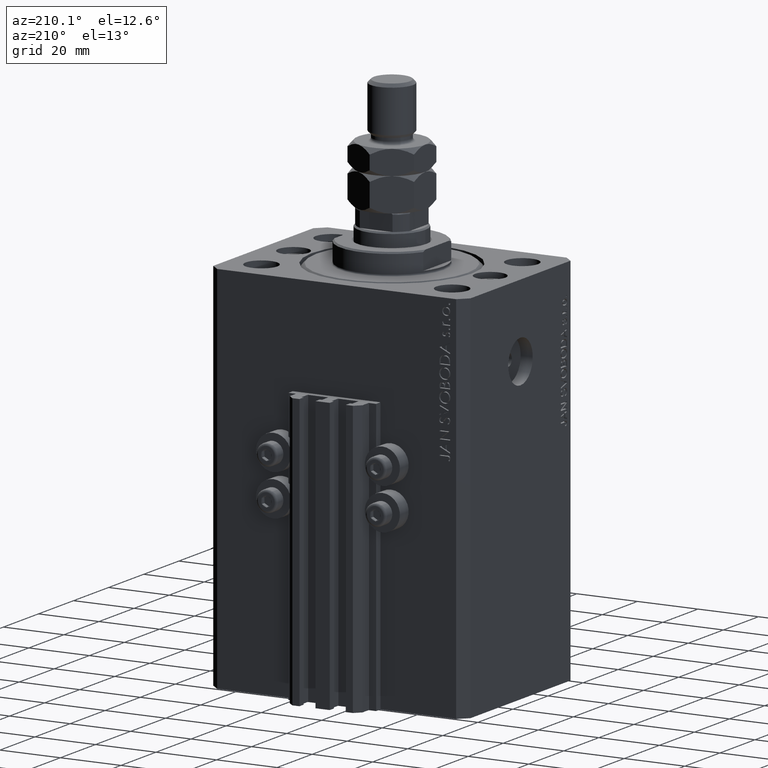
[diagram: clean part render]
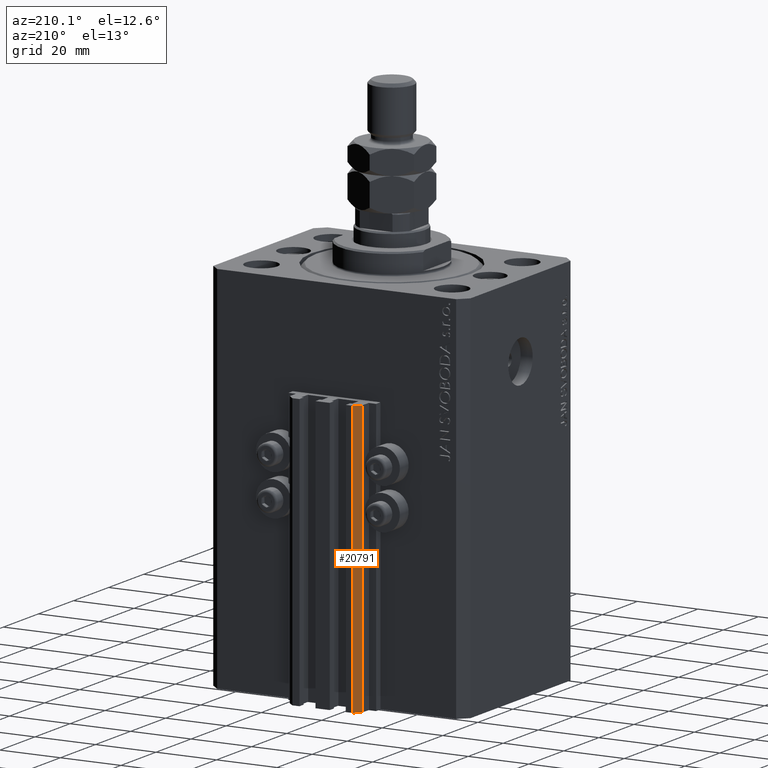
[diagram: same view with one face highlighted and labeled with its STEP entity id]
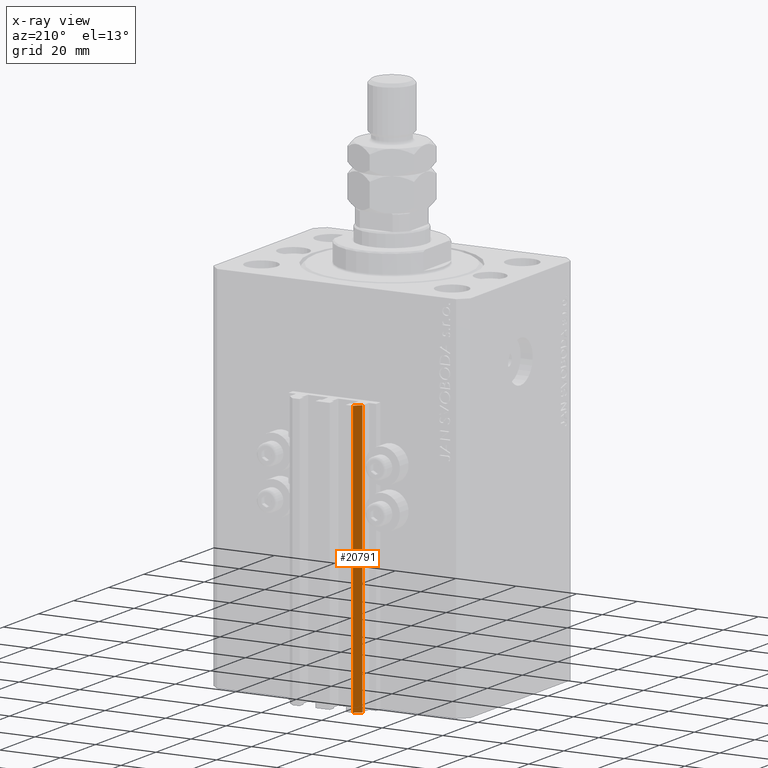
[diagram: x-ray of the same camera — body ghosted, the highlighted face saturated]
A machine part, auxiliary view. The second image highlights one B-rep face of the part: STEP entity #20791.
The next image is the same camera in x-ray: the body ghosted, the highlighted face saturated — about 0% of this face is hidden behind the body in this view.
In plain terms, the highlighted planar face has unit normal (-0.7071, 0.7071, 0).
Its self-contained STEP definition (entity closure, byte-faithful):
#6 = VECTOR ( 'NONE', #12207, 1000.000000000000000 ) ;
#1059 = ORIENTED_EDGE ( 'NONE', *, *, #38811, .F. ) ;
#2511 = EDGE_CURVE ( 'NONE', #37353, #8518, #21277, .T. ) ;
#4408 = LINE ( 'NONE', #31034, #17970 ) ;
#4757 = EDGE_LOOP ( 'NONE', ( #1059, #17007, #15386, #6702 ) ) ;
#4847 = CARTESIAN_POINT ( 'NONE',  ( -10.00000000000000000, 39.49999999999999289, -33.00000000000000000 ) ) ;
#5680 = CARTESIAN_POINT ( 'NONE',  ( -10.00000000000000000, 39.49999999999999289, -123.0000000000000000 ) ) ;
#6213 = CARTESIAN_POINT ( 'NONE',  ( -10.00000000000000000, 39.49999999999999289, -123.0000000000000000 ) ) ;
#6702 = ORIENTED_EDGE ( 'NONE', *, *, #22289, .T. ) ;
#8518 = VERTEX_POINT ( 'NONE', #21113 ) ;
#11118 = VECTOR ( 'NONE', #17595, 999.9999999999998863 ) ;
#12207 = DIRECTION ( 'NONE',  ( 0.000000000000000000, 0.000000000000000000, 1.000000000000000000 ) ) ;
#13362 = DIRECTION ( 'NONE',  ( -0.7071067811865472397, -0.7071067811865479058, 0.000000000000000000 ) ) ;
#14279 = LINE ( 'NONE', #36687, #37469 ) ;
#15386 = ORIENTED_EDGE ( 'NONE', *, *, #2511, .T. ) ;
#17007 = ORIENTED_EDGE ( 'NONE', *, *, #43156, .F. ) ;
#17595 = DIRECTION ( 'NONE',  ( -0.7071067811865472397, -0.7071067811865479058, 0.000000000000000000 ) ) ;
#17970 = VECTOR ( 'NONE', #42385, 1000.000000000000000 ) ;
#20791 = ADVANCED_FACE ( 'NONE', ( #24428 ), #39471, .T. ) ;
#21113 = CARTESIAN_POINT ( 'NONE',  ( -12.00000000000000000, 37.49999999999999289, -123.0000000000000000 ) ) ;
#21277 = LINE ( 'NONE', #6213, #11118 ) ;
#22289 = EDGE_CURVE ( 'NONE', #8518, #34260, #44992, .T. ) ;
#22852 = AXIS2_PLACEMENT_3D ( 'NONE', #5680, #47111, #13362 ) ;
#23680 = VERTEX_POINT ( 'NONE', #4847 ) ;
#24428 = FACE_OUTER_BOUND ( 'NONE', #4757, .T. ) ;
#29291 = DIRECTION ( 'NONE',  ( -0.7071067811865472397, -0.7071067811865479058, 0.000000000000000000 ) ) ;
#31034 = CARTESIAN_POINT ( 'NONE',  ( -10.00000000000000000, 39.49999999999999289, -123.0000000000000000 ) ) ;
#33023 = CARTESIAN_POINT ( 'NONE',  ( -12.00000000000000000, 37.49999999999999289, -33.00000000000000000 ) ) ;
#33877 = CARTESIAN_POINT ( 'NONE',  ( -12.00000000000000000, 37.49999999999999289, -123.0000000000000000 ) ) ;
#34260 = VERTEX_POINT ( 'NONE', #33023 ) ;
#36687 = CARTESIAN_POINT ( 'NONE',  ( -10.00000000000000000, 39.49999999999999289, -33.00000000000000000 ) ) ;
#37353 = VERTEX_POINT ( 'NONE', #40516 ) ;
#37469 = VECTOR ( 'NONE', #29291, 999.9999999999998863 ) ;
#38811 = EDGE_CURVE ( 'NONE', #23680, #34260, #14279, .T. ) ;
#39471 = PLANE ( 'NONE',  #22852 ) ;
#40516 = CARTESIAN_POINT ( 'NONE',  ( -10.00000000000000000, 39.49999999999999289, -123.0000000000000000 ) ) ;
#42385 = DIRECTION ( 'NONE',  ( 0.000000000000000000, 0.000000000000000000, 1.000000000000000000 ) ) ;
#43156 = EDGE_CURVE ( 'NONE', #37353, #23680, #4408, .T. ) ;
#44992 = LINE ( 'NONE', #33877, #6 ) ;
#47111 = DIRECTION ( 'NONE',  ( -0.7071067811865479058, 0.7071067811865472397, 0.000000000000000000 ) ) ;